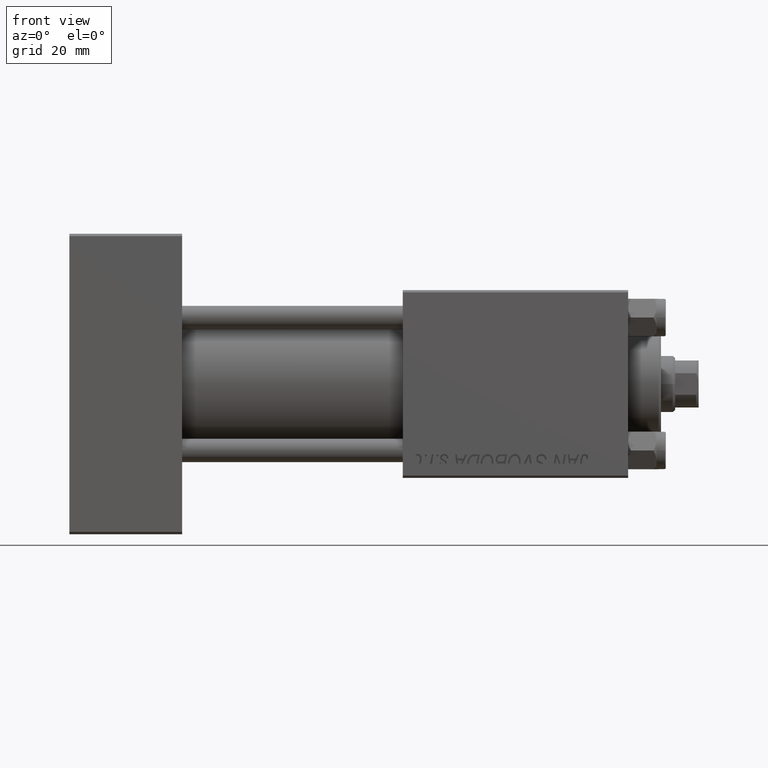
[diagram: clean part render]
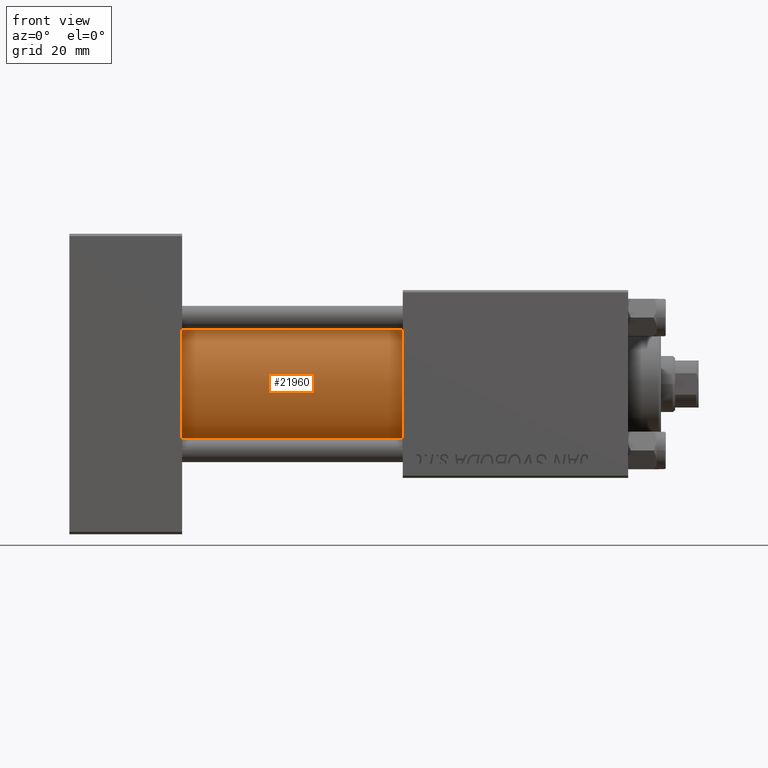
[diagram: same view with one face highlighted and labeled with its STEP entity id]
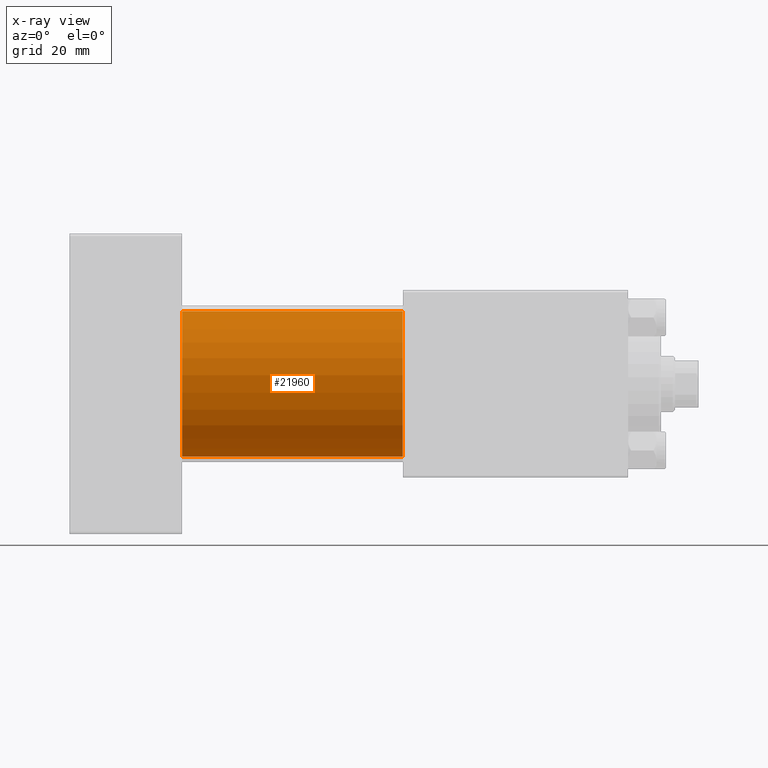
[diagram: x-ray of the same camera — body ghosted, the highlighted face saturated]
A machine part, front view. The second image highlights one B-rep face of the part: STEP entity #21960.
The next image is the same camera in x-ray: the body ghosted, the highlighted face saturated — about 0% of this face is hidden behind the body in this view.
In plain terms, the highlighted cylindrical surface (partial cylindrical patch) has radius 15.5 mm, axis along (-1, -0, -0).
Its self-contained STEP definition (entity closure, byte-faithful):
#816 = AXIS2_PLACEMENT_3D ( 'NONE', #15761, #45582, #8124 ) ;
#1883 = DIRECTION ( 'NONE',  ( -1.000000000000000000, -0.000000000000000000, -0.000000000000000000 ) ) ;
#4153 = CIRCLE ( 'NONE', #816, 15.50000000000000000 ) ;
#5614 = CIRCLE ( 'NONE', #13161, 15.50000000000000000 ) ;
#6608 = DIRECTION ( 'NONE',  ( -1.000000000000000000, -0.000000000000000000, -0.000000000000000000 ) ) ;
#8124 = DIRECTION ( 'NONE',  ( 0.000000000000000000, 0.000000000000000000, -1.000000000000000000 ) ) ;
#13161 = AXIS2_PLACEMENT_3D ( 'NONE', #50601, #42196, #34309 ) ;
#13276 = ORIENTED_EDGE ( 'NONE', *, *, #39581, .F. ) ;
#15761 = CARTESIAN_POINT ( 'NONE',  ( 71.00000000000001421, -2.602085213965210642E-15, 0.000000000000000000 ) ) ;
#16137 = CARTESIAN_POINT ( 'NONE',  ( 24.00000000000000000, -2.602085213965210642E-15, 15.50000000000000000 ) ) ;
#16928 = VERTEX_POINT ( 'NONE', #16999 ) ;
#16999 = CARTESIAN_POINT ( 'NONE',  ( 71.00000000000001421, -2.602085213965210642E-15, 15.50000000000000000 ) ) ;
#17101 = EDGE_CURVE ( 'NONE', #16928, #44360, #24765, .T. ) ;
#20892 = ORIENTED_EDGE ( 'NONE', *, *, #17101, .T. ) ;
#21314 = CYLINDRICAL_SURFACE ( 'NONE', #33479, 15.50000000000000000 ) ;
#21822 = CARTESIAN_POINT ( 'NONE',  ( 71.00000000000001421, -2.602085213965210642E-15, 0.000000000000000000 ) ) ;
#21960 = ADVANCED_FACE ( 'NONE', ( #34432 ), #21314, .T. ) ;
#23910 = ORIENTED_EDGE ( 'NONE', *, *, #46917, .T. ) ;
#24765 = LINE ( 'NONE', #40799, #31656 ) ;
#26743 = ORIENTED_EDGE ( 'NONE', *, *, #51426, .F. ) ;
#29191 = DIRECTION ( 'NONE',  ( 0.000000000000000000, 0.000000000000000000, 1.000000000000000000 ) ) ;
#29370 = CARTESIAN_POINT ( 'NONE',  ( 24.00000000000000000, -7.038826752868131828E-16, -15.50000000000000000 ) ) ;
#29483 = DIRECTION ( 'NONE',  ( -1.000000000000000000, -0.000000000000000000, -0.000000000000000000 ) ) ;
#31369 = EDGE_LOOP ( 'NONE', ( #13276, #26743, #20892, #23910 ) ) ;
#31656 = VECTOR ( 'NONE', #29483, 1000.000000000000000 ) ;
#33392 = LINE ( 'NONE', #34442, #49093 ) ;
#33479 = AXIS2_PLACEMENT_3D ( 'NONE', #21822, #1883, #29191 ) ;
#34309 = DIRECTION ( 'NONE',  ( 0.000000000000000000, 0.000000000000000000, 1.000000000000000000 ) ) ;
#34432 = FACE_OUTER_BOUND ( 'NONE', #31369, .T. ) ;
#34442 = CARTESIAN_POINT ( 'NONE',  ( 71.00000000000001421, -7.038826752868131828E-16, -15.50000000000000000 ) ) ;
#37563 = VERTEX_POINT ( 'NONE', #41521 ) ;
#39581 = EDGE_CURVE ( 'NONE', #37563, #44716, #33392, .T. ) ;
#40799 = CARTESIAN_POINT ( 'NONE',  ( 71.00000000000001421, -2.602085213965210642E-15, 15.50000000000000000 ) ) ;
#41521 = CARTESIAN_POINT ( 'NONE',  ( 71.00000000000001421, -7.038826752868131828E-16, -15.50000000000000000 ) ) ;
#42196 = DIRECTION ( 'NONE',  ( 1.000000000000000000, 0.000000000000000000, 0.000000000000000000 ) ) ;
#44360 = VERTEX_POINT ( 'NONE', #16137 ) ;
#44716 = VERTEX_POINT ( 'NONE', #29370 ) ;
#45582 = DIRECTION ( 'NONE',  ( 1.000000000000000000, 0.000000000000000000, 0.000000000000000000 ) ) ;
#46917 = EDGE_CURVE ( 'NONE', #44360, #44716, #5614, .T. ) ;
#49093 = VECTOR ( 'NONE', #6608, 1000.000000000000000 ) ;
#50601 = CARTESIAN_POINT ( 'NONE',  ( 24.00000000000000000, -2.602085213965210642E-15, 0.000000000000000000 ) ) ;
#51426 = EDGE_CURVE ( 'NONE', #16928, #37563, #4153, .T. ) ;